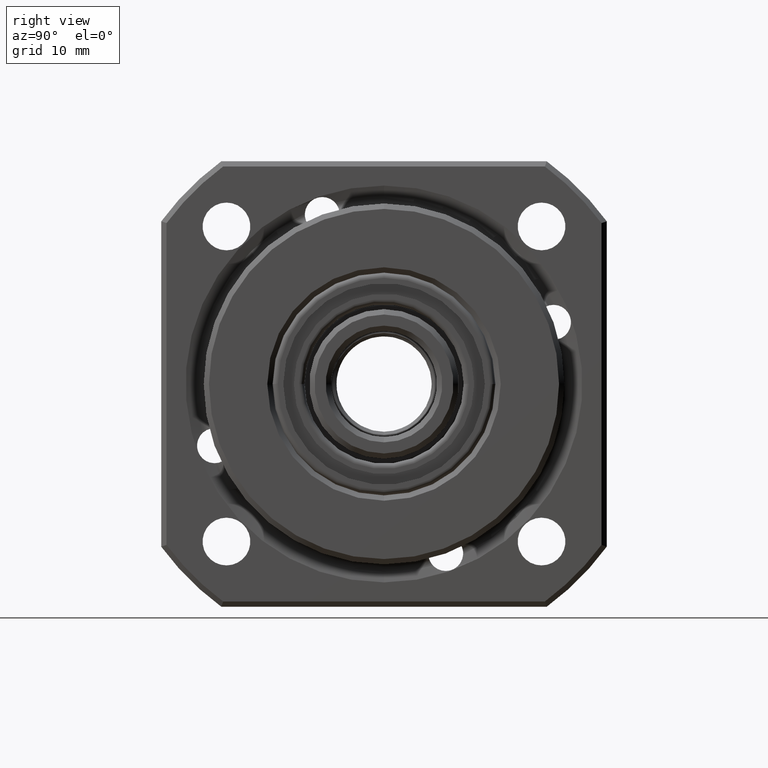
[diagram: clean part render]
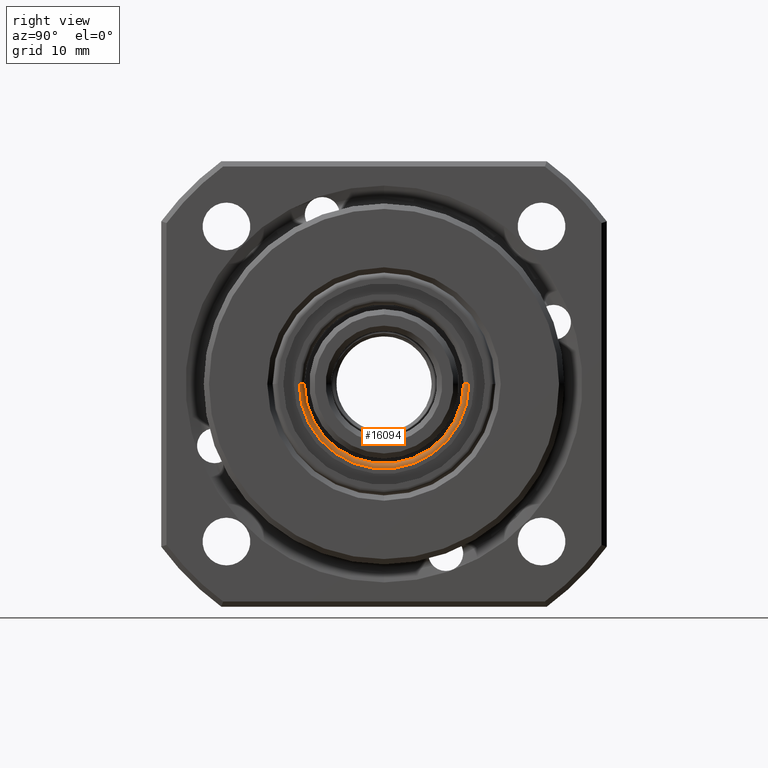
[diagram: same view with one face highlighted and labeled with its STEP entity id]
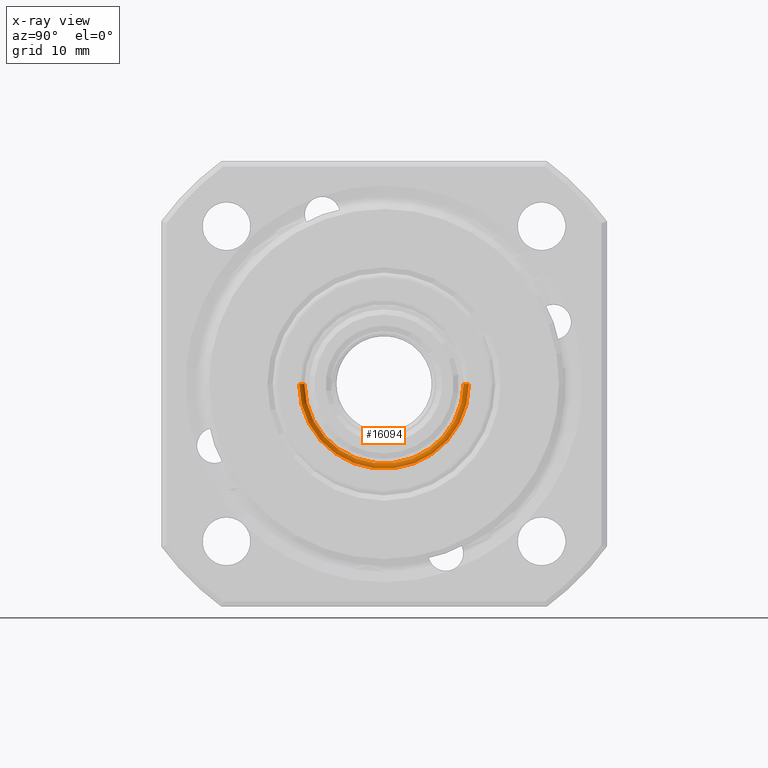
[diagram: x-ray of the same camera — body ghosted, the highlighted face saturated]
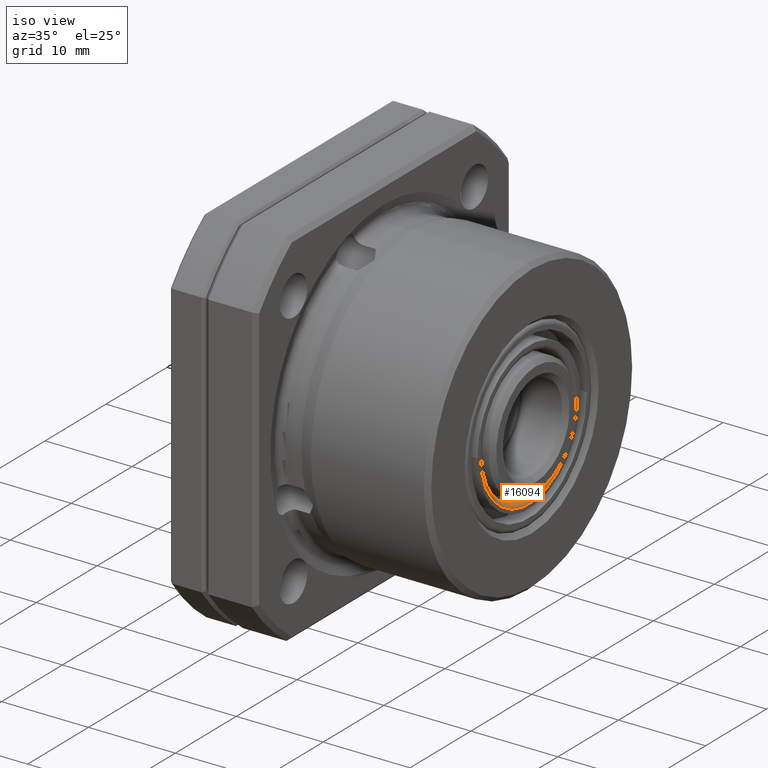
[diagram: same view with one face highlighted and labeled with its STEP entity id]
A machine part, right view. The second image highlights one B-rep face of the part: STEP entity #16094.
The next image is the same camera in x-ray: the body ghosted, the highlighted face saturated — about 0% of this face is hidden behind the body in this view.
A second angle (iso view) of the same face is appended — the face is thin or edge-on in the first view.
In plain terms, the highlighted toroidal blend (fillet) surface has major radius 8 mm and minor (blend) radius 0.5 mm.
Its self-contained STEP definition (entity closure, byte-faithful):
#2607 = CARTESIAN_POINT ( 'NONE',  ( 22.19999999999999600, -1.872742500049238300E-016, 1.846764596299806700E-030 ) ) ;
#2613 = FACE_OUTER_BOUND ( 'NONE', #16095, .T. ) ;
#2659 = CARTESIAN_POINT ( 'NONE',  ( 22.19999999999999600, 7.499999999999989300, 4.592728836739904300E-016 ) ) ;
#2660 = CARTESIAN_POINT ( 'NONE',  ( 22.19999999999999600, -7.499999999999989300, -1.377727649040768200E-015 ) ) ;
#2661 = DIRECTION ( 'NONE',  ( 0.0000000000000000000, 1.000000000000000000, 1.836970198721029700E-016 ) ) ;
#2662 = DIRECTION ( 'NONE',  ( 1.000000000000000000, -0.0000000000000000000, -1.232595164407830900E-032 ) ) ;
#2663 = CARTESIAN_POINT ( 'NONE',  ( 22.19999999999999600, -1.872742500049238300E-016, 1.846764596299806700E-030 ) ) ;
#2664 = AXIS2_PLACEMENT_3D ( 'NONE', #2663, #2662, #2661 ) ;
#2665 = DIRECTION ( 'NONE',  ( 2.264240584104833500E-048, 1.000000000000000000, 1.836970198721029700E-016 ) ) ;
#2666 = DIRECTION ( 'NONE',  ( -1.000000000000000000, 0.0000000000000000000, 1.232595164407830900E-032 ) ) ;
#2667 = AXIS2_PLACEMENT_3D ( 'NONE', #2607, #2666, #2665 ) ;
#2668 = TOROIDAL_SURFACE ( 'NONE', #2667, 7.999999999999989300, 0.5000000000000000000 ) ;
#2669 = CIRCLE ( 'NONE', #2664, 7.499999999999989300 ) ;
#2739 = DIRECTION ( 'NONE',  ( 0.0000000000000000000, -1.000000000000000000, -1.836970198721028000E-016 ) ) ;
#2740 = DIRECTION ( 'NONE',  ( 1.232595164407830900E-032, -1.836970198721029700E-016, 1.000000000000000000 ) ) ;
#2741 = CARTESIAN_POINT ( 'NONE',  ( 22.19999999999999600, 7.999999999999989300, 1.469576158976823900E-015 ) ) ;
#2742 = AXIS2_PLACEMENT_3D ( 'NONE', #2741, #2740, #2739 ) ;
#2743 = CIRCLE ( 'NONE', #2742, 0.5000000000000004400 ) ;
#2744 = CARTESIAN_POINT ( 'NONE',  ( 22.69999999999999900, 7.999999999999989300, 1.469576158976823900E-015 ) ) ;
#2745 = DIRECTION ( 'NONE',  ( 0.0000000000000000000, 1.000000000000000000, 1.836970198721029900E-016 ) ) ;
#2746 = DIRECTION ( 'NONE',  ( -1.000000000000000000, 0.0000000000000000000, 1.232595164407830900E-032 ) ) ;
#2747 = CARTESIAN_POINT ( 'NONE',  ( 22.69999999999999600, -1.872742500049238300E-016, 1.840601620477767500E-030 ) ) ;
#2748 = AXIS2_PLACEMENT_3D ( 'NONE', #2747, #2746, #2745 ) ;
#2749 = CIRCLE ( 'NONE', #2748, 7.999999999999989300 ) ;
#2750 = CARTESIAN_POINT ( 'NONE',  ( 22.69999999999999900, -7.999999999999989300, -2.449261242034720800E-015 ) ) ;
#2751 = DIRECTION ( 'NONE',  ( 0.0000000000000000000, 1.000000000000000000, 3.061576552543400000E-016 ) ) ;
#2752 = DIRECTION ( 'NONE',  ( -1.232595164407830900E-032, 3.061576552543406900E-016, -1.000000000000000000 ) ) ;
#2753 = CARTESIAN_POINT ( 'NONE',  ( 22.19999999999999600, -7.999999999999989300, -2.449261242034720400E-015 ) ) ;
#2754 = AXIS2_PLACEMENT_3D ( 'NONE', #2753, #2752, #2751 ) ;
#2755 = CIRCLE ( 'NONE', #2754, 0.5000000000000004400 ) ;
#16094 = ADVANCED_FACE ( 'NONE', ( #2613 ), #2668, .T. ) ;
#16095 = EDGE_LOOP ( 'NONE', ( #16096, #16151, #16154, #16157 ) ) ;
#16096 = ORIENTED_EDGE ( 'NONE', *, *, #16097, .F. ) ;
#16097 = EDGE_CURVE ( 'NONE', #16098, #16099, #2669, .T. ) ;
#16098 = VERTEX_POINT ( 'NONE', #2660 ) ;
#16099 = VERTEX_POINT ( 'NONE', #2659 ) ;
#16151 = ORIENTED_EDGE ( 'NONE', *, *, #16152, .T. ) ;
#16152 = EDGE_CURVE ( 'NONE', #16098, #16153, #2755, .T. ) ;
#16153 = VERTEX_POINT ( 'NONE', #2750 ) ;
#16154 = ORIENTED_EDGE ( 'NONE', *, *, #16155, .F. ) ;
#16155 = EDGE_CURVE ( 'NONE', #16156, #16153, #2749, .T. ) ;
#16156 = VERTEX_POINT ( 'NONE', #2744 ) ;
#16157 = ORIENTED_EDGE ( 'NONE', *, *, #16158, .F. ) ;
#16158 = EDGE_CURVE ( 'NONE', #16099, #16156, #2743, .T. ) ;